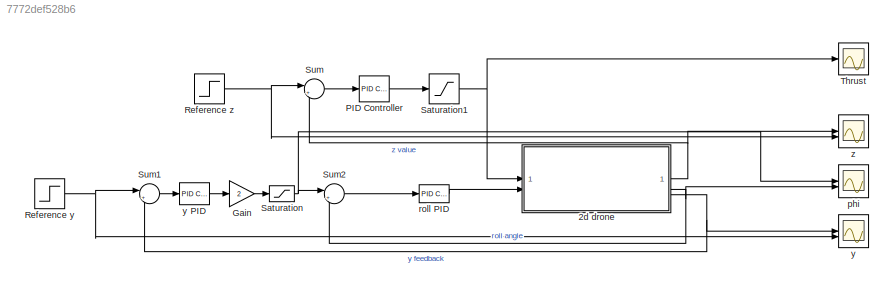
MODEL slx_7772def528b6
KIND model
CONFIG AbsTol = auto
CONFIG EnableMultiTasking = off
CONFIG FixedStep = auto
CONFIG MaxStep = auto
CONFIG MinStep = auto
CONFIG RelTol = 1e-3
CONFIG SampleTimeConstraint = Unconstrained
CONFIG SolverName = VariableStepAuto
CONFIG StartTime = 0.0
CONFIG StopTime = 10.0
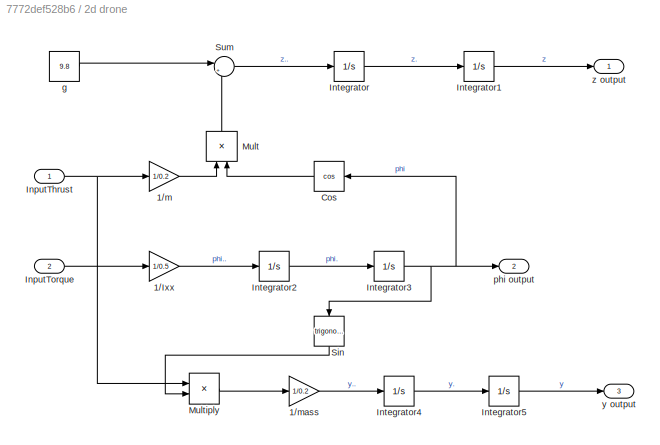
BLOCK [SubSystem] 2d drone
BLOCK [Inport] 2d drone/ InputThrust
BLOCK [Gain] 2d drone/1//Ixx
  Gain = 1/0.5
BLOCK [Gain] 2d drone/1//m
  Gain = 1/0.2
BLOCK [Gain] 2d drone/1//mass
  Gain = 1/0.2
BLOCK [Trigonometry] 2d drone/Cos
  NameLocation = top
  Operator = cos
BLOCK [Inport] 2d drone/InputTorque
  Port = 2
BLOCK [Integrator] 2d drone/Integrator
BLOCK [Integrator] 2d drone/Integrator1
BLOCK [Integrator] 2d drone/Integrator2
BLOCK [Integrator] 2d drone/Integrator3
BLOCK [Integrator] 2d drone/Integrator4
BLOCK [Integrator] 2d drone/Integrator5
BLOCK [Product] 2d drone/Mult
  Inputs = **
  NameLocation = right
BLOCK [Product] 2d drone/Multiply
  Inputs = **
BLOCK [Trigonometry] 2d drone/Sin
  NameLocation = left
BLOCK [Sum] 2d drone/Sum
  Inputs = |+-
BLOCK [Constant] 2d drone/g
  Value = 9.8
BLOCK [Outport] 2d drone/phi output
  Port = 2
BLOCK [Outport] 2d drone/y output
  Port = 3
BLOCK [Outport] 2d drone/z output 
BLOCK [Gain] Gain
  Gain = 2
BLOCK [Reference] PID Controller  REF=slpidlib/PID Controller
  LibrarySourceBlock = simulink/Continuous/PID Controller
  SourceBlock = slpidlib/PID Controller
  SourceType = PID 1dof
BLOCK [Step] Reference y
  After = 10
  SampleTime = 0
BLOCK [Step] Reference z
  After = 5
  SampleTime = 0
BLOCK [Saturate] Saturation
  LowerLimit = -0.52
  UpperLimit = 0.52
BLOCK [Saturate] Saturation1
  LowerLimit = -30
  UpperLimit = 30
BLOCK [Sum] Sum
  Inputs = |+-
BLOCK [Sum] Sum1
  Inputs = |+-
BLOCK [Sum] Sum2
  Inputs = |+-
BLOCK [Scope] Thrust
  Floating = off
  NumInputPorts = 1
  ScopeSpecificationString = Simulink.scopes.TimeScopeBlockCfg('CurrentConfiguration', extmgr.ConfigurationSet(extmgr.Configuration('Core','General UI',true),extmgr.Configuration('Core','Source UI',true),extmgr.Configuration('Sources','WiredSimulink',true,'DataLoggingVariableName','ScopeData1'),extmgr.Configuration('Visuals','Time Domain',true,'SerializedDisplays',{struct('MinYLimReal','-36.4142','MaxYLimReal','27.72777','YLa...<+1461ch>
BLOCK [Scope] phi
  Floating = off
  NumInputPorts = 2
  ScopeSpecificationString = Simulink.scopes.TimeScopeBlockCfg('CurrentConfiguration', extmgr.ConfigurationSet(extmgr.Configuration('Core','General UI',true),extmgr.Configuration('Core','Source UI',true),extmgr.Configuration('Sources','WiredSimulink',true,'DataLoggingVariableName','ScopeData1'),extmgr.Configuration('Visuals','Time Domain',true,'SerializedDisplays',{struct('MinYLimReal','-2.84925','MaxYLimReal','3.37789','YLab...<+1616ch>
BLOCK [Reference] roll PID   REF=slpidlib/PID Controller
  LibrarySourceBlock = simulink/Continuous/PID Controller
  SourceBlock = slpidlib/PID Controller
  SourceType = PID 1dof
BLOCK [Scope] y
  Floating = off
  NumInputPorts = 2
  ScopeSpecificationString = Simulink.scopes.TimeScopeBlockCfg('CurrentConfiguration', extmgr.ConfigurationSet(extmgr.Configuration('Core','General UI',true),extmgr.Configuration('Core','Source UI',true),extmgr.Configuration('Sources','WiredSimulink',true,'DataLoggingVariableName','ScopeData2'),extmgr.Configuration('Visuals','Time Domain',true,'SerializedDisplays',{struct('MinYLimReal','-1.50741','MaxYLimReal','14.17415','YLa...<+1559ch>
BLOCK [Reference] y PID   REF=slpidlib/PID Controller
  LibrarySourceBlock = simulink/Continuous/PID Controller
  SourceBlock = slpidlib/PID Controller
  SourceType = PID 1dof
BLOCK [Scope] z
  Floating = off
  NumInputPorts = 2
  ScopeSpecificationString = Simulink.scopes.TimeScopeBlockCfg('CurrentConfiguration', extmgr.ConfigurationSet(extmgr.Configuration('Core','General UI',true),extmgr.Configuration('Core','Source UI',true),extmgr.Configuration('Sources','WiredSimulink',true),extmgr.Configuration('Visuals','Time Domain',true,'SerializedDisplays',{struct('MinYLimReal','-3.70227','MaxYLimReal','14.52812','YLabelReal','','MinYLimMag','0.00000','Max...<+1484ch>
NET 2d drone/ InputThrust:1 -> 2d drone/1//m:1, 2d drone/Multiply:1
LINE 2d drone/1//Ixx:1 -> 2d drone/Integrator2:1
LINE 2d drone/1//m:1 -> 2d drone/Mult:1
LINE 2d drone/1//mass:1 -> 2d drone/Integrator4:1
LINE 2d drone/Cos:1 -> 2d drone/Mult:2
LINE 2d drone/InputTorque:1 -> 2d drone/1//Ixx:1
LINE 2d drone/Integrator1:1 -> 2d drone/z output :1
LINE 2d drone/Integrator2:1 -> 2d drone/Integrator3:1
NET 2d drone/Integrator3:1 -> 2d drone/Cos:1, 2d drone/Sin:1, 2d drone/phi output:1
LINE 2d drone/Integrator4:1 -> 2d drone/Integrator5:1
LINE 2d drone/Integrator5:1 -> 2d drone/y output:1
LINE 2d drone/Integrator:1 -> 2d drone/Integrator1:1
LINE 2d drone/Mult:1 -> 2d drone/Sum:2
LINE 2d drone/Multiply:1 -> 2d drone/1//mass:1
LINE 2d drone/Sin:1 -> 2d drone/Multiply:2
LINE 2d drone/Sum:1 -> 2d drone/Integrator:1
LINE 2d drone/g:1 -> 2d drone/Sum:1
NET 2d drone:1 -> Sum:2, z:1
NET 2d drone:2 -> Sum2:2, phi:2
NET 2d drone:3 -> Sum1:2, y:1
LINE Gain:1 -> Saturation:1
LINE PID Controller:1 -> Saturation1:1
NET Reference y:1 -> Sum1:1, y:2
NET Reference z:1 -> Sum:1, z:2
NET Saturation1:1 -> 2d drone:1, Thrust:1
NET Saturation:1 -> Sum2:1, phi:1
LINE Sum1:1 -> y PID :1
LINE Sum2:1 -> roll PID :1
LINE Sum:1 -> PID Controller:1
LINE roll PID :1 -> 2d drone:2
LINE y PID :1 -> Gain:1
note: NET lines group one-source signal fan-out (src -> all destinations, sorted); 1:1 wires keep LINE
